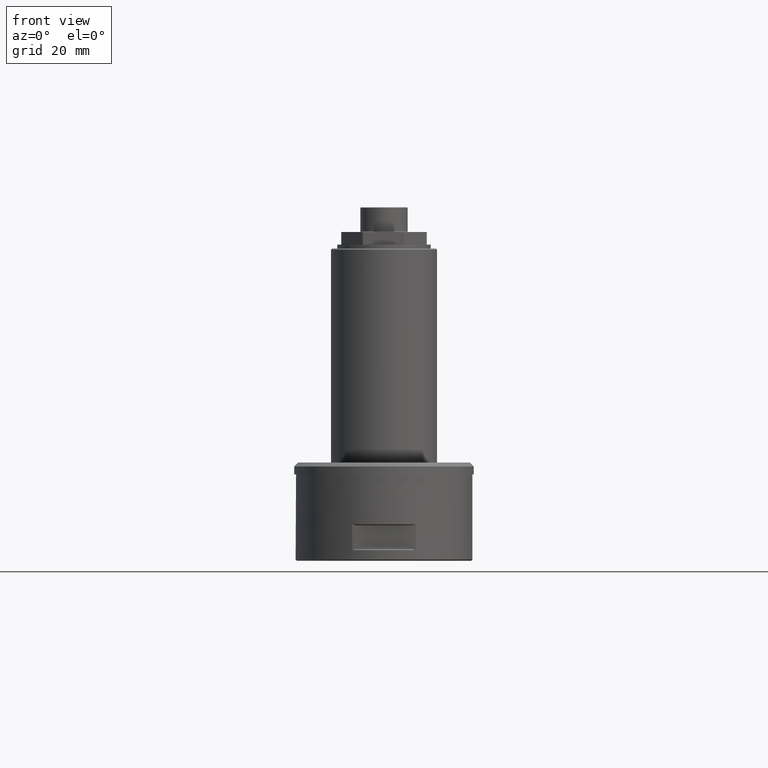
[diagram: clean part render]
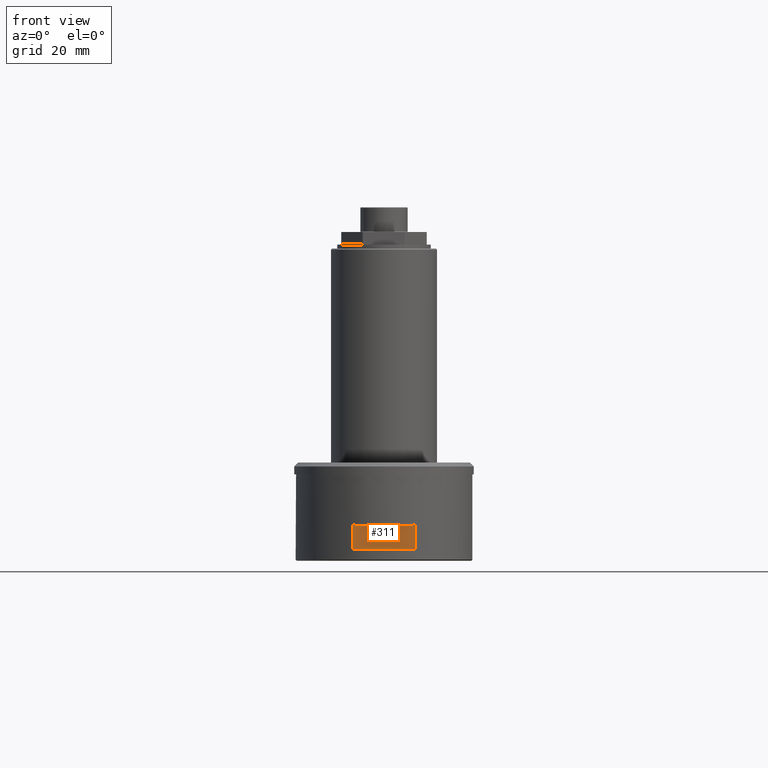
[diagram: same view with one face highlighted and labeled with its STEP entity id]
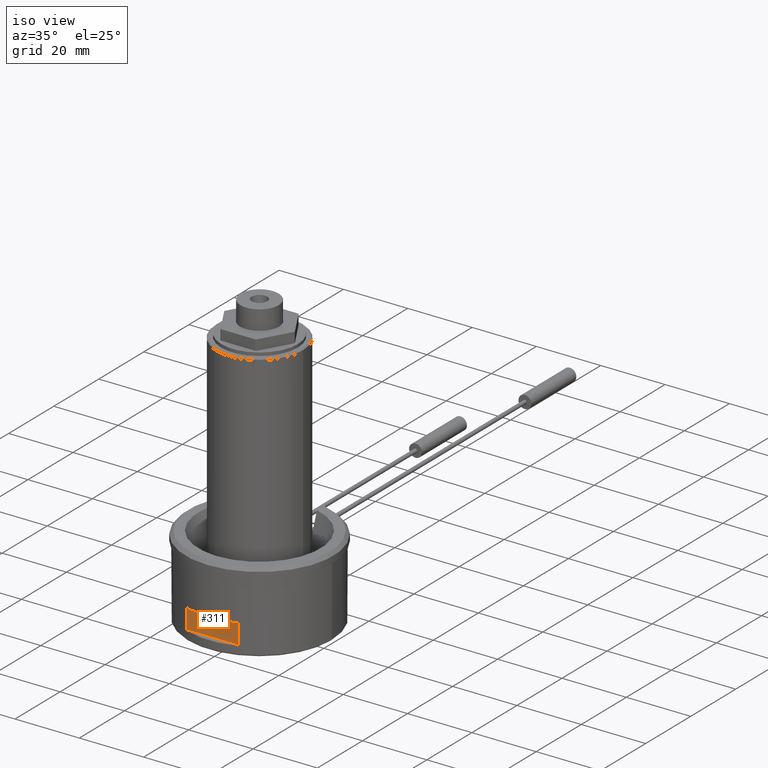
[diagram: same view with one face highlighted and labeled with its STEP entity id]
A machine part, front view. The second image highlights one B-rep face of the part: STEP entity #311.
A second angle (iso view) of the same face is appended — the face is thin or edge-on in the first view.
In plain terms, the highlighted planar face has unit normal (0, -1, 0).
Its self-contained STEP definition (entity closure, byte-faithful):
#51=B_SPLINE_CURVE_WITH_KNOTS('',3,(#1744,#1745,#1746,#1747),
 .UNSPECIFIED.,.F.,.F.,(4,4),(0.,1.),.UNSPECIFIED.);
#52=B_SPLINE_CURVE_WITH_KNOTS('',3,(#1748,#1749,#1750,#1751),
 .UNSPECIFIED.,.F.,.F.,(4,4),(0.,1.),.UNSPECIFIED.);
#53=B_SPLINE_CURVE_WITH_KNOTS('',3,(#1752,#1753,#1754,#1755),
 .UNSPECIFIED.,.F.,.F.,(4,4),(0.,1.),.UNSPECIFIED.);
#54=B_SPLINE_CURVE_WITH_KNOTS('',3,(#1756,#1757,#1758,#1759),
 .UNSPECIFIED.,.F.,.F.,(4,4),(0.,1.),.UNSPECIFIED.);
#75=LINE('',#1499,#119);
#76=LINE('',#1504,#120);
#97=LINE('',#1734,#141);
#98=LINE('',#1739,#142);
#119=VECTOR('',#1212,1.);
#120=VECTOR('',#1215,1.);
#141=VECTOR('',#1350,1.);
#142=VECTOR('',#1355,1.);
#214=PLANE('',#1095);
#249=FACE_OUTER_BOUND('',#470,.T.);
#311=ADVANCED_FACE('',(#249),#214,.T.);
#470=EDGE_LOOP('',(#646,#647,#648,#649,#650,#651,#652,#653));
#646=ORIENTED_EDGE('',*,*,#860,.T.);
#647=ORIENTED_EDGE('',*,*,#930,.T.);
#648=ORIENTED_EDGE('',*,*,#928,.T.);
#649=ORIENTED_EDGE('',*,*,#931,.T.);
#650=ORIENTED_EDGE('',*,*,#862,.T.);
#651=ORIENTED_EDGE('',*,*,#932,.T.);
#652=ORIENTED_EDGE('',*,*,#926,.T.);
#653=ORIENTED_EDGE('',*,*,#933,.T.);
#766=VERTEX_POINT('',#1500);
#767=VERTEX_POINT('',#1501);
#768=VERTEX_POINT('',#1503);
#769=VERTEX_POINT('',#1505);
#816=VERTEX_POINT('',#1735);
#817=VERTEX_POINT('',#1736);
#818=VERTEX_POINT('',#1740);
#819=VERTEX_POINT('',#1741);
#860=EDGE_CURVE('',#766,#767,#75,.T.);
#862=EDGE_CURVE('',#769,#768,#76,.T.);
#926=EDGE_CURVE('',#816,#817,#97,.T.);
#928=EDGE_CURVE('',#818,#819,#98,.T.);
#930=EDGE_CURVE('',#767,#818,#51,.T.);
#931=EDGE_CURVE('',#819,#769,#52,.T.);
#932=EDGE_CURVE('',#768,#816,#53,.T.);
#933=EDGE_CURVE('',#817,#766,#54,.T.);
#1095=AXIS2_PLACEMENT_3D('',#1760,#1360,#1361);
#1212=DIRECTION('',(0.,0.,1.));
#1215=DIRECTION('',(0.,0.,-1.));
#1350=DIRECTION('',(1.,0.,0.));
#1355=DIRECTION('',(-1.,0.,0.));
#1360=DIRECTION('',(0.,-1.,0.));
#1361=DIRECTION('',(0.,0.,-1.));
#1499=CARTESIAN_POINT('',(8.07774721070187,-21.,0.));
#1500=CARTESIAN_POINT('',(8.07774721070187,-21.,2.7));
#1501=CARTESIAN_POINT('',(8.07774721070187,-21.,9.3));
#1503=CARTESIAN_POINT('',(-8.07774721070187,-21.,2.7));
#1504=CARTESIAN_POINT('',(-8.07774721070187,-21.,0.));
#1505=CARTESIAN_POINT('',(-8.07774721070187,-21.,9.3));
#1734=CARTESIAN_POINT('',(-8.25,-21.,3.));
#1735=CARTESIAN_POINT('',(-7.20000000000013,-21.,3.));
#1736=CARTESIAN_POINT('',(7.20000000000013,-21.,3.));
#1739=CARTESIAN_POINT('',(8.25,-21.,9.00000000000001));
#1740=CARTESIAN_POINT('',(7.20000000000013,-21.,9.00000000000001));
#1741=CARTESIAN_POINT('',(-7.20000000000013,-21.,9.00000000000001));
#1744=CARTESIAN_POINT('',(8.07774721070187,-21.,9.3));
#1745=CARTESIAN_POINT('',(7.78673347785379,-21.,9.19552287249825));
#1746=CARTESIAN_POINT('',(7.49411782316866,-21.,9.09538956427088));
#1747=CARTESIAN_POINT('',(7.20000000000013,-21.,9.00000000000001));
#1748=CARTESIAN_POINT('',(-7.20000000000013,-21.,9.00000000000001));
#1749=CARTESIAN_POINT('',(-7.49411782316866,-21.,9.09538956427088));
#1750=CARTESIAN_POINT('',(-7.78673347785379,-21.,9.19552287249825));
#1751=CARTESIAN_POINT('',(-8.07774721070187,-21.,9.3));
#1752=CARTESIAN_POINT('',(-8.07774721070187,-21.,2.7));
#1753=CARTESIAN_POINT('',(-7.78673347785379,-21.,2.80447712750175));
#1754=CARTESIAN_POINT('',(-7.49411782316866,-21.,2.90461043572912));
#1755=CARTESIAN_POINT('',(-7.20000000000013,-21.,3.));
#1756=CARTESIAN_POINT('',(7.20000000000013,-21.,3.));
#1757=CARTESIAN_POINT('',(7.49411782316866,-21.,2.90461043572912));
#1758=CARTESIAN_POINT('',(7.78673347785379,-21.,2.80447712750175));
#1759=CARTESIAN_POINT('',(8.07774721070187,-21.,2.7));
#1760=CARTESIAN_POINT('',(0.,-21.,0.));